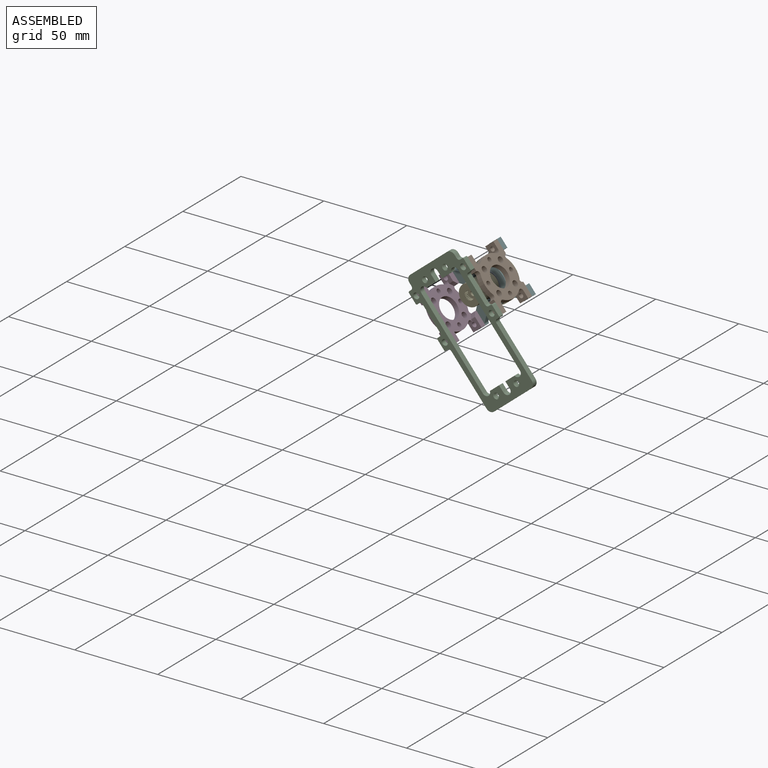
[diagram: assembled view]
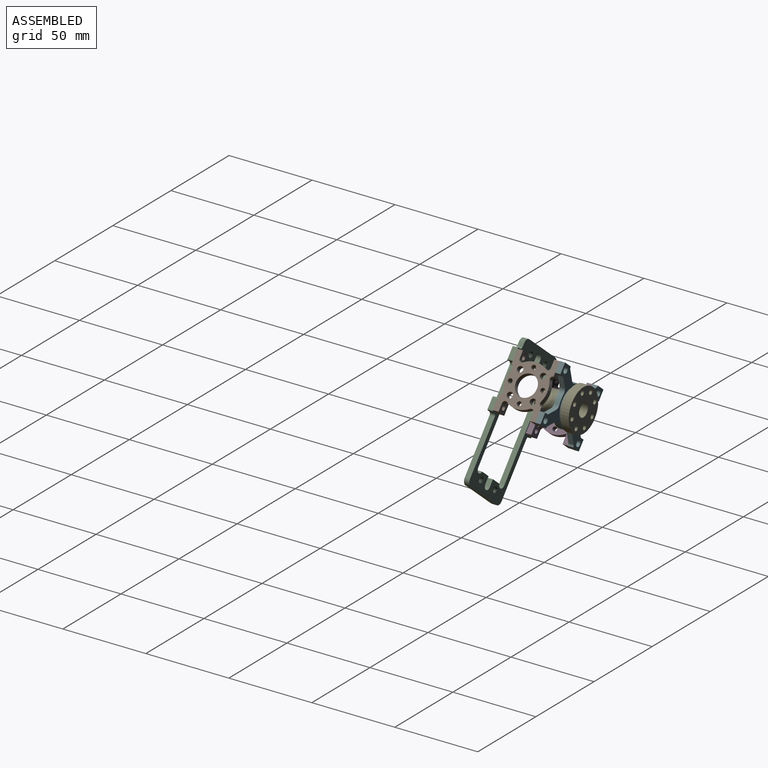
[diagram: assembled view, second angle]
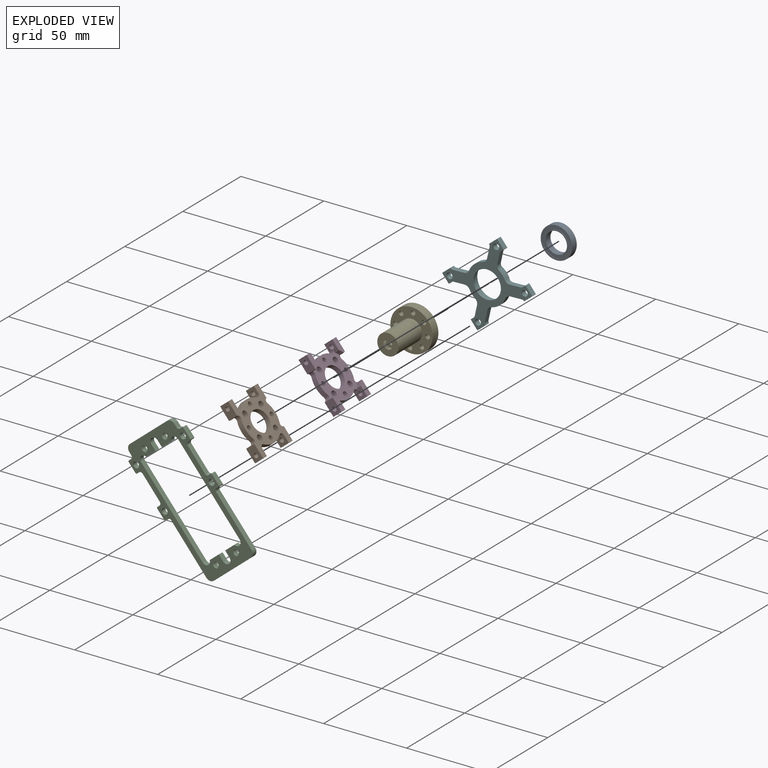
[diagram: exploded view]
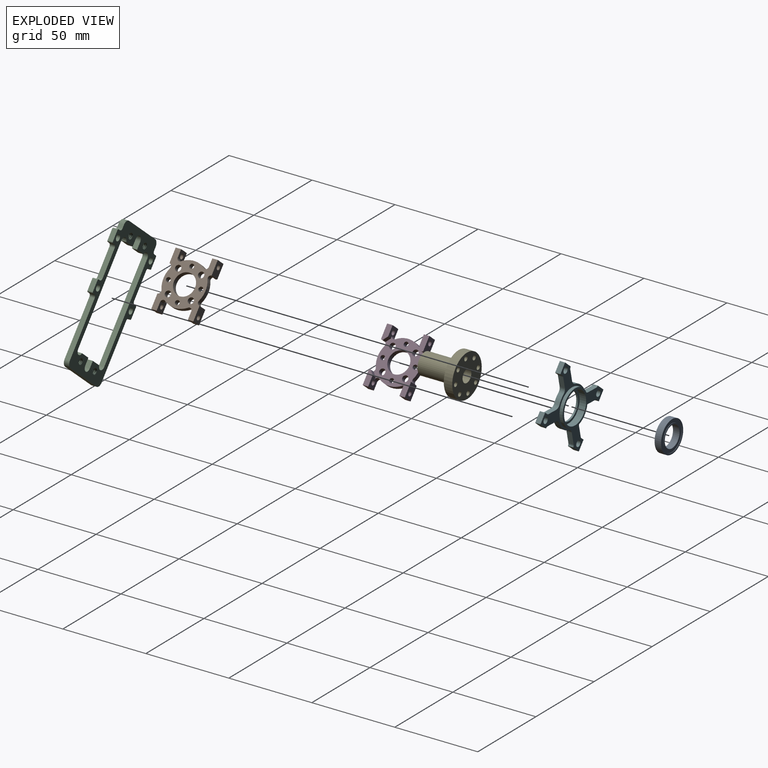
[diagram: exploded view, second angle]
ASSEMBLY  parts=6 mates=5
PART A: 12 faces, bbox 19.1x3.9x19.1 mm
  f0: cylinder r=7.11mm len=14.22mm, axis (0,-1,0), area 11.4mm2, adj f6,f11
  f1: cylinder r=8.55mm len=17.09mm, axis (0,-1,0), area 13.6mm2, adj f9,f11
  f2: cylinder r=7.11mm len=14.22mm, axis (0,1,0), area 11.4mm2, adj f7,f10
  f3: cylinder r=8.55mm len=17.09mm, axis (0,1,0), area 13.6mm2, adj f8,f10
  f4: cylinder r=6.35mm len=12.7mm, axis (0,-1,0), area 156.1mm2, adj f6,f7
  f5: cylinder r=9.53mm len=19.05mm, axis (0,-1,0), area 234.1mm2, adj f8,f9
  f6: plane 14.22x14.22mm, normal (0,-1,0), area 32.2mm2, adj f0,f4
  f7: plane 14.22x14.22mm, normal (0,1,0), area 32.2mm2, adj f2,f4
  f8: plane 19.05x19.05mm, normal (0,1,0), area 55.5mm2, adj f3,f5
  f9: plane 19.05x19.05mm, normal (0,-1,0), area 55.5mm2, adj f1,f5
  f10: plane 17.09x17.09mm, normal (0,1,0), area 70.6mm2, adj f2,f3
  f11: plane 17.09x17.09mm, normal (0,-1,0), area 70.6mm2, adj f0,f1
PART B: 55 faces, bbox 25.4x6.4x33 mm
  f0: cylinder r=1.35mm len=3.29mm, axis (-1,0,0), area 28mm2, adj f29,f31
  f1: cylinder r=1.35mm len=3.29mm, axis (-1,0,0), area 28mm2, adj f25,f27
  f2: cylinder r=1.35mm len=3.29mm, axis (1,0,0), area 28mm2, adj f34,f36
  f3: cylinder r=1.35mm len=3.29mm, axis (1,0,0), area 28mm2, adj f37,f39
  f4: cylinder r=0.64mm len=3.18mm, axis (0,-1,0), area 2.7mm2, adj f20,f32,f43,f44
  f5: cylinder r=0.64mm len=3.18mm, axis (0,-1,0), area 2.7mm2, adj f20,f33,f45,f46
  f6: cylinder r=1.59mm len=3.18mm, axis (0,1,0), area 10.8mm2, adj f19,f20,f24,f37
  f7: cylinder r=1.59mm len=3.18mm, axis (0,1,0), area 10.8mm2, adj f20,f22,f24,f36
  f8: cylinder r=1.59mm len=3.18mm, axis (0,1,0), area 10.8mm2, adj f20,f22,f24,f29
  f9: cylinder r=1.59mm len=3.18mm, axis (0,1,0), area 10.8mm2, adj f19,f20,f24,f25
  f10: cylinder r=1.78mm len=3.56mm, axis (0,1,0), area 35.5mm2, adj f20,f24
  f11: cylinder r=1.78mm len=3.56mm, axis (0,1,0), area 35.5mm2, adj f20,f24
  f12: cylinder r=1.78mm len=3.56mm, axis (0,1,0), area 35.5mm2, adj f20,f24
  f13: cylinder r=1.78mm len=3.56mm, axis (0,1,0), area 35.5mm2, adj f20,f24
  f14: cylinder r=1.35mm len=3.18mm, axis (0,1,0), area 27mm2, adj f20,f24
  f15: cylinder r=1.35mm len=3.18mm, axis (0,1,0), area 27mm2, adj f20,f24
  f16: cylinder r=1.35mm len=3.18mm, axis (0,1,0), area 27mm2, adj f20,f24
  f17: cylinder r=1.35mm len=3.18mm, axis (0,1,0), area 27mm2, adj f20,f24
  f18: cylinder r=6.36mm len=12.73mm, axis (0,1,0), area 126.9mm2, adj f20,f24
  f19: cylinder r=12.7mm len=13.9mm, axis (0,-1,0), area 46.7mm2, adj f6,f9,f20,f24
  f20: plane 25.4x25.4mm, normal (0,1,0), area 341.8mm2, adj f4,f5,f6,f7,f8,f9,f10,f11
  f21: cylinder r=12.7mm len=11.64mm, axis (0,-1,0), area 38.4mm2, adj f20,f24,f33,f40
  f22: cylinder r=12.7mm len=13.9mm, axis (0,-1,0), area 46.7mm2, adj f7,f8,f20,f24
  f23: cylinder r=12.7mm len=11.64mm, axis (0,-1,0), area 38.4mm2, adj f20,f24,f28,f32
  f24: plane 33.02x25.4mm, normal (0,-1,0), area 443.4mm2, adj f6,f7,f8,f9,f10,f11,f12,f13
  f25: plane 6.35x5.9mm, normal (1,0,0), area 27.5mm2, adj f1,f9,f20,f24,f26,f42,f51
  f26: plane 6.35x3.29mm, normal (0,0,-1), area 20.9mm2, adj f24,f25,f27,f42
  f27: plane 8.38x6.35mm, normal (-1,0,0), area 47.4mm2, adj f1,f24,f26,f28,f42
  f28: cylinder r=1.59mm len=6.35mm, axis (0,1,0), area 12.4mm2, adj f20,f23,f24,f27,f42,f52
  f29: plane 6.35x5.9mm, normal (1,0,0), area 27.5mm2, adj f0,f8,f20,f24,f30,f44,f50
  f30: plane 6.35x3.29mm, normal (0,0,1), area 20.9mm2, adj f24,f29,f31,f44
  f31: plane 8.38x6.35mm, normal (-1,0,0), area 47.4mm2, adj f0,f24,f30,f32,f44
  f32: cylinder r=1.59mm len=6.35mm, axis (0,1,0), area 12.4mm2, adj f4,f20,f23,f24,f31,f44
  f33: cylinder r=1.59mm len=6.35mm, axis (0,1,0), area 12.4mm2, adj f5,f20,f21,f24,f34,f46
  f34: plane 8.38x6.35mm, normal (1,0,0), area 47.4mm2, adj f2,f24,f33,f35,f46
  f35: plane 6.35x3.29mm, normal (0,0,1), area 20.9mm2, adj f24,f34,f36,f46
  f36: plane 6.35x5.9mm, normal (-1,0,0), area 27.5mm2, adj f2,f7,f20,f24,f35,f46,f49
  f37: plane 6.35x5.9mm, normal (-1,0,0), area 27.5mm2, adj f3,f6,f20,f24,f38,f48,f53
  f38: plane 6.35x3.29mm, normal (0,0,-1), area 20.9mm2, adj f24,f37,f39,f48
  f39: plane 8.38x6.35mm, normal (1,0,0), area 47.4mm2, adj f3,f24,f38,f40,f48
  f40: cylinder r=1.59mm len=6.35mm, axis (0,1,0), area 12.4mm2, adj f20,f21,f24,f39,f48,f54
  f41: cylinder r=13.97mm len=3.18mm, axis (0,-1,0), area 8.2mm2, adj f20,f42,f51,f52
  f42: plane 8.56x3.29mm, normal (0,1,0), area 25.4mm2, adj f25,f26,f27,f28,f41,f51,f52
  f43: cylinder r=13.97mm len=3.18mm, axis (0,-1,0), area 8.2mm2, adj f4,f20,f44,f50
  f44: plane 8.56x3.29mm, normal (0,1,0), area 25.4mm2, adj f4,f29,f30,f31,f32,f43,f50
  f45: cylinder r=13.97mm len=3.18mm, axis (0,-1,0), area 8.2mm2, adj f5,f20,f46,f49
  f46: plane 8.56x3.29mm, normal (0,1,0), area 25.4mm2, adj f5,f33,f34,f35,f36,f45,f49
  f47: cylinder r=13.97mm len=3.18mm, axis (0,-1,0), area 8.2mm2, adj f20,f48,f53,f54
  f48: plane 8.56x3.29mm, normal (0,1,0), area 25.4mm2, adj f37,f38,f39,f40,f47,f53,f54
  f49: cylinder r=0.64mm len=3.18mm, axis (0,-1,0), area 1.6mm2, adj f20,f36,f45,f46
  f50: cylinder r=0.64mm len=3.18mm, axis (0,-1,0), area 1.6mm2, adj f20,f29,f43,f44
  f51: cylinder r=0.64mm len=3.18mm, axis (0,-1,0), area 1.6mm2, adj f20,f25,f41,f42
  f52: cylinder r=0.64mm len=3.18mm, axis (0,-1,0), area 2.7mm2, adj f20,f28,f41,f42
  f53: cylinder r=0.64mm len=3.18mm, axis (0,-1,0), area 1.6mm2, adj f20,f37,f47,f48
  f54: cylinder r=0.64mm len=3.18mm, axis (0,-1,0), area 2.7mm2, adj f20,f40,f47,f48
PART C: 86 faces, bbox 79.2x3.8x42.9 mm
  f0: cylinder r=1.75mm len=3.51mm, axis (0,-1,0), area 4.4mm2, adj f22,f23,f84,f85
  f1: cylinder r=1.75mm len=3.51mm, axis (0,-1,0), area 4.4mm2, adj f22,f23,f82,f83
  f2: cylinder r=1.75mm len=3.51mm, axis (0,-1,0), area 4.4mm2, adj f22,f23,f80,f81
  f3: cylinder r=1.75mm len=3.51mm, axis (0,-1,0), area 4.4mm2, adj f22,f23,f78,f79
  f4: cylinder r=1.35mm len=2.71mm, axis (0,1,0), area 5.9mm2, adj f12,f13,f78,f79
  f5: cylinder r=1.35mm len=2.71mm, axis (0,1,0), area 5.9mm2, adj f18,f19,f84,f85
  f6: cylinder r=1.35mm len=2.71mm, axis (0,1,0), area 5.9mm2, adj f16,f17,f82,f83
  f7: cylinder r=1.35mm len=2.71mm, axis (0,1,0), area 5.9mm2, adj f14,f15,f80,f81
  f8: cylinder r=1.78mm len=3.56mm, axis (0,1,0), area 35.5mm2, adj f22,f23
  f9: cylinder r=1.78mm len=3.56mm, axis (0,1,0), area 35.5mm2, adj f22,f23
  f10: cylinder r=1.78mm len=3.56mm, axis (0,1,0), area 35.5mm2, adj f22,f23
  f11: cylinder r=1.78mm len=3.56mm, axis (0,1,0), area 35.5mm2, adj f22,f23
  f12: cone r=1.75mm half-angle=45deg, axis (0,-1,0), area 3.3mm2, adj f4,f23,f78,f79
  f13: cone r=1.35mm half-angle=45deg, axis (0,1,0), area 3.3mm2, adj f4,f22,f78,f79
  f14: cone r=1.75mm half-angle=45deg, axis (0,-1,0), area 3.3mm2, adj f7,f23,f80,f81
  f15: cone r=1.35mm half-angle=45deg, axis (0,1,0), area 3.3mm2, adj f7,f22,f80,f81
  f16: cone r=1.75mm half-angle=45deg, axis (0,-1,0), area 3.3mm2, adj f6,f23,f82,f83
  f17: cone r=1.35mm half-angle=45deg, axis (0,1,0), area 3.3mm2, adj f6,f22,f82,f83
  f18: cone r=1.75mm half-angle=45deg, axis (0,-1,0), area 3.3mm2, adj f5,f23,f84,f85
  f19: cone r=1.35mm half-angle=45deg, axis (0,1,0), area 3.3mm2, adj f5,f22,f84,f85
  f20: plane 58.16x3.18mm, normal (0,0,-1), area 184.7mm2, adj f22,f23,f75,f76
  f21: plane 58.16x3.18mm, normal (0,0,1), area 184.7mm2, adj f22,f23,f74,f77
  f22: plane 79.25x42.93mm, normal (0,1,0), area 1018.6mm2, adj f0,f1,f2,f3,f8,f9,f10,f11
  f23: plane 79.25x42.93mm, normal (0,-1,0), area 1018.6mm2, adj f0,f1,f2,f3,f8,f9,f10,f11
  f24: plane 7.17x3.18mm, normal (-1,0,0), area 22.8mm2, adj f22,f23,f41,f77
  f25: plane 7.17x3.18mm, normal (1,0,0), area 22.8mm2, adj f22,f23,f38,f75
  f26: plane 3.18x1.88mm, normal (0,0,1), area 6mm2, adj f22,f23,f43,f58
  f27: plane 16.15x3.18mm, normal (0,0,1), area 51.3mm2, adj f22,f23,f59,f60
  f28: plane 33.25x3.18mm, normal (0,0,1), area 105.6mm2, adj f22,f23,f42,f61
  f29: plane 16.15x3.18mm, normal (0,0,-1), area 51.3mm2, adj f22,f23,f63,f64
  f30: plane 33.25x3.18mm, normal (0,0,-1), area 105.6mm2, adj f22,f23,f44,f62
  f31: plane 7.17x3.18mm, normal (-1,0,0), area 22.8mm2, adj f22,f23,f40,f76
  f32: plane 7.17x3.18mm, normal (1,0,0), area 22.8mm2, adj f22,f23,f37,f74
  f33: plane 28.92x3.18mm, normal (1,0,0), area 91.8mm2, adj f22,f23,f42,f44
  f34: plane 3.18x1.88mm, normal (0,0,-1), area 6mm2, adj f22,f23,f45,f65
  f35: plane 28.92x3.18mm, normal (-1,0,0), area 91.8mm2, adj f22,f23,f43,f45
  f36: cylinder r=2.48mm len=4.95mm, axis (0,1,0), area 24.7mm2, adj f22,f23,f37,f38
  f37: plane 4.13x3.18mm, normal (0,0,1), area 13.1mm2, adj f22,f23,f32,f36
  f38: plane 4.13x3.18mm, normal (0,0,-1), area 13.1mm2, adj f22,f23,f25,f36
  f39: cylinder r=2.48mm len=4.95mm, axis (0,1,0), area 24.7mm2, adj f22,f23,f40,f41
  f40: plane 4.13x3.18mm, normal (0,0,-1), area 13.1mm2, adj f22,f23,f31,f39
  f41: plane 4.13x3.18mm, normal (0,0,1), area 13.1mm2, adj f22,f23,f24,f39
  f42: cylinder r=3.19mm len=3.19mm, axis (0,-1,0), area 15.9mm2, adj f22,f23,f28,f33
  f43: cylinder r=3.19mm len=3.19mm, axis (0,-1,0), area 15.9mm2, adj f22,f23,f26,f35
  f44: cylinder r=3.19mm len=3.19mm, axis (0,-1,0), area 15.9mm2, adj f22,f23,f30,f33
  f45: cylinder r=3.19mm len=3.19mm, axis (0,-1,0), area 15.9mm2, adj f22,f23,f34,f35
  f46: plane 3.18x1.59mm, normal (1,0,0), area 5mm2, adj f22,f23,f62,f66
  f47: plane 6.35x3.18mm, normal (0,0,-1), area 20.2mm2, adj f22,f23,f66,f67
  f48: plane 3.18x1.59mm, normal (-1,0,0), area 5mm2, adj f22,f23,f63,f67
  f49: plane 3.18x1.59mm, normal (1,0,0), area 5mm2, adj f22,f23,f64,f68
  f50: plane 6.35x3.18mm, normal (0,0,-1), area 20.2mm2, adj f22,f23,f68,f69
  f51: plane 3.18x1.59mm, normal (-1,0,0), area 5mm2, adj f22,f23,f65,f69
  f52: plane 3.18x1.59mm, normal (1,0,0), area 5mm2, adj f22,f23,f61,f72
  f53: plane 6.35x3.18mm, normal (0,0,1), area 20.2mm2, adj f22,f23,f71,f72
  f54: plane 3.18x1.59mm, normal (-1,0,0), area 5mm2, adj f22,f23,f60,f71
  f55: plane 3.18x1.59mm, normal (-1,0,0), area 5mm2, adj f22,f23,f58,f73
  f56: plane 3.18x1.59mm, normal (1,0,0), area 5mm2, adj f22,f23,f59,f70
  f57: plane 6.35x3.18mm, normal (0,0,1), area 20.2mm2, adj f22,f23,f70,f73
  f58: cylinder r=1.59mm len=3.18mm, axis (0,-1,0), area 7.9mm2, adj f22,f23,f26,f55
  f59: cylinder r=1.59mm len=3.18mm, axis (0,-1,0), area 7.9mm2, adj f22,f23,f27,f56
  f60: cylinder r=1.59mm len=3.18mm, axis (0,-1,0), area 7.9mm2, adj f22,f23,f27,f54
  f61: cylinder r=1.59mm len=3.18mm, axis (0,-1,0), area 7.9mm2, adj f22,f23,f28,f52
  f62: cylinder r=1.59mm len=3.18mm, axis (0,1,0), area 7.9mm2, adj f22,f23,f30,f46
  f63: cylinder r=1.59mm len=3.18mm, axis (0,1,0), area 7.9mm2, adj f22,f23,f29,f48
  f64: cylinder r=1.59mm len=3.18mm, axis (0,1,0), area 7.9mm2, adj f22,f23,f29,f49
  f65: cylinder r=1.59mm len=3.18mm, axis (0,1,0), area 7.9mm2, adj f22,f23,f34,f51
  f66: cylinder r=0.64mm len=3.18mm, axis (0,1,0), area 3.2mm2, adj f22,f23,f46,f47
  f67: cylinder r=0.64mm len=3.18mm, axis (0,1,0), area 3.2mm2, adj f22,f23,f47,f48
  f68: cylinder r=0.64mm len=3.18mm, axis (0,1,0), area 3.2mm2, adj f22,f23,f49,f50
  f69: cylinder r=0.64mm len=3.18mm, axis (0,1,0), area 3.2mm2, adj f22,f23,f50,f51
  f70: cylinder r=0.64mm len=3.18mm, axis (0,1,0), area 3.2mm2, adj f22,f23,f56,f57
  f71: cylinder r=0.64mm len=3.18mm, axis (0,1,0), area 3.2mm2, adj f22,f23,f53,f54
  f72: cylinder r=0.64mm len=3.18mm, axis (0,1,0), area 3.2mm2, adj f22,f23,f52,f53
  f73: cylinder r=0.64mm len=3.18mm, axis (0,1,0), area 3.2mm2, adj f22,f23,f55,f57
  f74: cylinder r=2.48mm len=4.83mm, axis (0,1,0), area 22.2mm2, adj f21,f22,f23,f32
  f75: cylinder r=2.48mm len=4.83mm, axis (0,1,0), area 22.2mm2, adj f20,f22,f23,f25
  f76: cylinder r=2.48mm len=4.83mm, axis (0,1,0), area 22.2mm2, adj f20,f22,f23,f31
  f77: cylinder r=2.48mm len=4.83mm, axis (0,1,0), area 22.2mm2, adj f21,f22,f23,f24
  f78: bspline ~4.05x3.56mm, area 15.9mm2, adj f3,f4,f12,f13
  f79: bspline ~4.06x3.56mm, area 16.1mm2, adj f3,f4,f12,f13
  f80: bspline ~4.05x3.56mm, area 15.9mm2, adj f2,f7,f14,f15
  f81: bspline ~4.06x3.56mm, area 16.1mm2, adj f2,f7,f14,f15
  f82: bspline ~4.02x3.71mm, area 15.9mm2, adj f1,f6,f16,f17
  f83: bspline ~4.02x3.71mm, area 15.9mm2, adj f1,f6,f16,f17
  f84: bspline ~4.02x3.71mm, area 15.9mm2, adj f0,f5,f18,f19
  f85: bspline ~4.02x3.71mm, area 15.9mm2, adj f0,f5,f18,f19
PART D: same geometry as B
PART E: 67 faces, bbox 25.4x25.4x25.4 mm
  f0: cylinder r=3.26mm len=6.52mm, axis (0,1,0), area 10.4mm2, adj f17,f66
  f1: cylinder r=1.5mm len=3mm, axis (0,1,0), area 12mm2, adj f16,f17
  f2: cylinder r=3.81mm len=21.08mm, axis (0,-1,0), area 504.7mm2, adj f14,f16
  f3: cylinder r=6.35mm len=20.32mm, axis (0,-1,0), area 810.2mm2, adj f13,f15
  f4: cylinder r=1.35mm len=5.08mm, axis (0,1,0), area 43.2mm2, adj f13,f14
  f5: cylinder r=1.35mm len=5.08mm, axis (0,1,0), area 43.2mm2, adj f13,f14
  f6: cylinder r=1.35mm len=5.08mm, axis (0,1,0), area 43.2mm2, adj f13,f14
  f7: cylinder r=1.35mm len=5.08mm, axis (0,1,0), area 43.2mm2, adj f13,f14
  f8: cylinder r=1.35mm len=5.08mm, axis (0,1,0), area 43.2mm2, adj f13,f14
  f9: cylinder r=1.35mm len=5.08mm, axis (0,1,0), area 43.2mm2, adj f13,f14
  f10: cylinder r=1.35mm len=5.08mm, axis (0,1,0), area 43.2mm2, adj f13,f14
  f11: cylinder r=1.35mm len=5.08mm, axis (0,1,0), area 43.2mm2, adj f13,f14
  f12: cylinder r=12.7mm len=25.39mm, axis (0,-1,0), area 405.2mm2, adj f13,f14
  f13: plane 25.39x25.39mm, normal (0,1,0), area 333.9mm2, adj f3,f4,f5,f6,f7,f8,f9,f10
  f14: plane 25.39x25.39mm, normal (0,-1,0), area 414.8mm2, adj f2,f4,f5,f6,f7,f8,f9,f10
  f15: plane 12.69x12.69mm, normal (0,1,0), area 103.4mm2, adj f3,f18,f19,f20,f21,f22,f23,f24
  f16: plane 7.62x7.62mm, normal (0,-1,0), area 38.5mm2, adj f1,f2
  f17: plane 6.52x6.52mm, normal (0,1,0), area 26.3mm2, adj f0,f1
  f18: plane 2.54x0.41mm, normal (-0.86,0,-0.5), area 1.2mm2, adj f15,f19,f65,f66
  f19: plane 2.54x0.34mm, normal (-0.7,0,0.71), area 1.2mm2, adj f15,f18,f20,f66
  f20: plane 2.54x0.34mm, normal (-0.7,0,-0.71), area 1.2mm2, adj f15,f19,f21,f66
  f21: plane 2.54x0.41mm, normal (-0.86,0,0.5), area 1.2mm2, adj f15,f20,f22,f66
  f22: plane 2.54x0.41mm, normal (-0.5,0,-0.87), area 1.2mm2, adj f15,f21,f23,f66
  f23: plane 2.54x0.46mm, normal (-0.97,0,0.26), area 1.2mm2, adj f15,f22,f24,f66
  f24: plane 2.54x0.46mm, normal (-0.26,0,-0.97), area 1.2mm2, adj f15,f23,f25,f66
  f25: plane 2.54x0.48mm, normal (-1,0,0), area 1.2mm2, adj f15,f24,f26,f66
  f26: plane 2.54x0.48mm, normal (0,0,-1), area 1.2mm2, adj f15,f25,f27,f66
  f27: plane 2.54x0.46mm, normal (-0.97,0,-0.26), area 1.2mm2, adj f15,f26,f28,f66
  f28: plane 2.54x0.46mm, normal (0.26,0,-0.97), area 1.2mm2, adj f15,f27,f29,f66
  f29: plane 2.54x0.41mm, normal (-0.87,0,-0.5), area 1.2mm2, adj f15,f28,f30,f66
  f30: plane 2.54x0.41mm, normal (0.5,0,-0.86), area 1.2mm2, adj f15,f29,f31,f66
  f31: plane 2.54x0.34mm, normal (-0.71,0,-0.7), area 1.2mm2, adj f15,f30,f32,f66
  f32: plane 2.54x0.34mm, normal (0.71,0,-0.7), area 1.2mm2, adj f15,f31,f33,f66
  f33: plane 2.54x0.41mm, normal (-0.5,0,-0.86), area 1.2mm2, adj f15,f32,f34,f66
  f34: plane 2.54x0.41mm, normal (0.87,0,-0.5), area 1.2mm2, adj f15,f33,f35,f66
  f35: plane 2.54x0.46mm, normal (-0.26,0,-0.97), area 1.2mm2, adj f15,f34,f36,f66
  f36: plane 2.54x0.46mm, normal (0.97,0,-0.26), area 1.2mm2, adj f15,f35,f37,f66
  f37: plane 2.54x0.48mm, normal (0,0,-1), area 1.2mm2, adj f15,f36,f38,f66
  f38: plane 2.54x0.48mm, normal (1,0,0), area 1.2mm2, adj f15,f37,f39,f66
  f39: plane 2.54x0.46mm, normal (0.26,0,-0.97), area 1.2mm2, adj f15,f38,f40,f66
  f40: plane 2.54x0.46mm, normal (0.97,0,0.26), area 1.2mm2, adj f15,f39,f41,f66
  f41: plane 2.54x0.41mm, normal (0.5,0,-0.87), area 1.2mm2, adj f15,f40,f42,f66
  f42: plane 2.54x0.41mm, normal (0.86,0,0.5), area 1.2mm2, adj f15,f41,f43,f66
  f43: plane 2.54x0.34mm, normal (0.7,0,-0.71), area 1.2mm2, adj f15,f42,f44,f66
  f44: plane 2.54x0.34mm, normal (0.7,0,0.71), area 1.2mm2, adj f15,f43,f45,f66
  f45: plane 2.54x0.41mm, normal (0.86,0,-0.5), area 1.2mm2, adj f15,f44,f46,f66
  f46: plane 2.54x0.41mm, normal (0.5,0,0.87), area 1.2mm2, adj f15,f45,f47,f66
  f47: plane 2.54x0.46mm, normal (0.97,0,-0.26), area 1.2mm2, adj f15,f46,f48,f66
  f48: plane 2.54x0.46mm, normal (0.26,0,0.97), area 1.2mm2, adj f15,f47,f49,f66
  f49: plane 2.54x0.48mm, normal (1,0,0), area 1.2mm2, adj f15,f48,f50,f66
  f50: plane 2.54x0.48mm, normal (0,0,1), area 1.2mm2, adj f15,f49,f51,f66
  f51: plane 2.54x0.46mm, normal (0.97,0,0.26), area 1.2mm2, adj f15,f50,f52,f66
  f52: plane 2.54x0.46mm, normal (-0.26,0,0.97), area 1.2mm2, adj f15,f51,f53,f66
  f53: plane 2.54x0.41mm, normal (0.87,0,0.5), area 1.2mm2, adj f15,f52,f54,f66
  f54: plane 2.54x0.41mm, normal (-0.5,0,0.86), area 1.2mm2, adj f15,f53,f55,f66
  f55: plane 2.54x0.34mm, normal (0.71,0,0.7), area 1.2mm2, adj f15,f54,f56,f66
  f56: plane 2.54x0.34mm, normal (-0.71,0,0.7), area 1.2mm2, adj f15,f55,f57,f66
  f57: plane 2.54x0.41mm, normal (0.5,0,0.86), area 1.2mm2, adj f15,f56,f58,f66
  f58: plane 2.54x0.41mm, normal (-0.87,0,0.5), area 1.2mm2, adj f15,f57,f59,f66
  f59: plane 2.54x0.46mm, normal (0.26,0,0.97), area 1.2mm2, adj f15,f58,f60,f66
  f60: plane 2.54x0.46mm, normal (-0.97,0,0.26), area 1.2mm2, adj f15,f59,f61,f66
  f61: plane 2.54x0.48mm, normal (0,0,1), area 1.2mm2, adj f15,f60,f62,f66
  f62: plane 2.54x0.48mm, normal (-1,0,0), area 1.2mm2, adj f15,f61,f63,f66
  f63: plane 2.54x0.46mm, normal (-0.26,0,0.97), area 1.2mm2, adj f15,f62,f64,f66
  f64: plane 2.54x0.46mm, normal (-0.97,0,-0.26), area 1.2mm2, adj f15,f63,f65,f66
  f65: plane 2.54x0.41mm, normal (-0.5,0,0.87), area 1.2mm2, adj f15,f18,f64,f66
  f66: plane 6.52x6.52mm, normal (0,-1,0), area 10.3mm2, adj f0,f18,f19,f20,f21,f22,f23,f24
PART F: 63 faces, bbox 42.9x5.1x33.3 mm
  f0: cylinder r=3.17mm len=3.41mm, axis (0,-1,0), area 11.5mm2, adj f10,f11,f33,f34
  f1: cylinder r=3.17mm len=3.41mm, axis (0,-1,0), area 11.5mm2, adj f10,f11,f12,f34
  f2: cylinder r=1.78mm len=3.56mm, axis (0,1,0), area 35.5mm2, adj f10,f34
  f3: cylinder r=1.78mm len=3.56mm, axis (0,1,0), area 35.5mm2, adj f10,f34
  f4: cylinder r=1.78mm len=3.56mm, axis (0,1,0), area 35.5mm2, adj f10,f34
  f5: cylinder r=1.78mm len=3.56mm, axis (0,1,0), area 35.5mm2, adj f10,f34
  f6: cylinder r=8.26mm len=16.51mm, axis (0,1,0), area 58mm2, adj f34,f36
  f7: cylinder r=9.53mm len=19.05mm, axis (0,-1,0), area 237.1mm2, adj f35,f36
  f8: cylinder r=10.73mm len=21.46mm, axis (0,-1,0), area 128.5mm2, adj f10,f35
  f9: cylinder r=11.97mm len=11.02mm, axis (0,-1,0), area 36.4mm2, adj f10,f34,f39,f40
  f10: plane 42.93x33.27mm, normal (0,1,0), area 419.3mm2, adj f0,f1,f2,f3,f4,f5,f8,f9
  f11: cylinder r=11.97mm len=11.02mm, axis (0,-1,0), area 36.4mm2, adj f0,f1,f10,f34
  f12: plane 5.58x4.32mm, normal (-0.61,0,0.79), area 22.4mm2, adj f1,f10,f34,f48
  f13: plane 6.1x3.18mm, normal (0,0,1), area 19.4mm2, adj f10,f34,f57,f59
  f14: plane 6.1x3.18mm, normal (1,0,0), area 19.4mm2, adj f10,f34,f56,f59
  f15: plane 3.18x2.34mm, normal (0,0,-1), area 7.4mm2, adj f10,f34,f43,f56
  f16: plane 5.21x4.04mm, normal (0.61,0,-0.79), area 20.9mm2, adj f10,f34,f42,f43
  f17: cylinder r=11.97mm len=5.38mm, axis (0,-1,0), area 17.2mm2, adj f10,f34,f41,f42
  f18: plane 5.21x4.04mm, normal (0.61,0,0.79), area 20.9mm2, adj f10,f34,f41,f49
  f19: plane 3.18x2.34mm, normal (0,0,1), area 7.4mm2, adj f10,f34,f49,f55
  f20: plane 6.1x3.18mm, normal (1,0,0), area 19.4mm2, adj f10,f34,f55,f62
  f21: plane 6.1x3.18mm, normal (0,0,-1), area 19.4mm2, adj f10,f34,f54,f62
  f22: plane 5.58x4.32mm, normal (-0.61,0,-0.79), area 22.4mm2, adj f10,f34,f40,f45
  f23: plane 5.58x4.32mm, normal (0.61,0,-0.79), area 22.4mm2, adj f10,f34,f39,f44
  f24: plane 6.1x3.18mm, normal (0,0,-1), area 19.4mm2, adj f10,f34,f53,f61
  f25: plane 6.1x3.18mm, normal (-1,0,0), area 19.4mm2, adj f10,f34,f52,f61
  f26: plane 3.18x2.34mm, normal (0,0,1), area 7.4mm2, adj f10,f34,f47,f52
  f27: plane 5.21x4.04mm, normal (-0.61,0,0.79), area 20.9mm2, adj f10,f34,f38,f47
  f28: cylinder r=11.97mm len=5.38mm, axis (0,-1,0), area 17.2mm2, adj f10,f34,f37,f38
  f29: plane 5.21x4.04mm, normal (-0.61,0,-0.79), area 20.9mm2, adj f10,f34,f37,f46
  f30: plane 3.18x2.34mm, normal (0,0,-1), area 7.4mm2, adj f10,f34,f46,f51
  f31: plane 6.1x3.18mm, normal (-1,0,0), area 19.4mm2, adj f10,f34,f51,f60
  f32: plane 6.1x3.18mm, normal (0,0,1), area 19.4mm2, adj f10,f34,f58,f60
  f33: plane 5.58x4.32mm, normal (0.61,0,0.79), area 22.4mm2, adj f0,f10,f34,f50
  f34: plane 42.93x33.27mm, normal (0,-1,0), area 567mm2, adj f0,f1,f2,f3,f4,f5,f6,f9
  f35: plane 21.46x21.46mm, normal (0,1,0), area 76.8mm2, adj f7,f8
  f36: plane 19.05x19.05mm, normal (0,1,0), area 70.9mm2, adj f6,f7
  f37: cylinder r=3.17mm len=3.22mm, axis (0,-1,0), area 11.5mm2, adj f10,f28,f29,f34
  f38: cylinder r=3.17mm len=3.22mm, axis (0,-1,0), area 11.5mm2, adj f10,f27,f28,f34
  f39: cylinder r=3.17mm len=3.41mm, axis (0,-1,0), area 11.5mm2, adj f9,f10,f23,f34
  f40: cylinder r=3.17mm len=3.41mm, axis (0,-1,0), area 11.5mm2, adj f9,f10,f22,f34
  f41: cylinder r=3.17mm len=3.22mm, axis (0,-1,0), area 11.5mm2, adj f10,f17,f18,f34
  f42: cylinder r=3.17mm len=3.22mm, axis (0,-1,0), area 11.5mm2, adj f10,f16,f17,f34
  f43: cylinder r=1.59mm len=3.18mm, axis (0,1,0), area 3.3mm2, adj f10,f15,f16,f34
  f44: cylinder r=1.59mm len=3.18mm, axis (0,1,0), area 4.6mm2, adj f10,f23,f34,f53
  f45: cylinder r=1.59mm len=3.18mm, axis (0,1,0), area 4.6mm2, adj f10,f22,f34,f54
  f46: cylinder r=1.59mm len=3.18mm, axis (0,1,0), area 3.3mm2, adj f10,f29,f30,f34
  f47: cylinder r=1.59mm len=3.18mm, axis (0,1,0), area 3.3mm2, adj f10,f26,f27,f34
  f48: cylinder r=1.59mm len=3.18mm, axis (0,1,0), area 4.6mm2, adj f10,f12,f34,f57
  f49: cylinder r=1.59mm len=3.18mm, axis (0,1,0), area 3.3mm2, adj f10,f18,f19,f34
  f50: cylinder r=1.59mm len=3.18mm, axis (0,1,0), area 4.6mm2, adj f10,f33,f34,f58
  f51: cylinder r=0.13mm len=3.18mm, axis (0,-1,0), area 0.6mm2, adj f10,f30,f31,f34
  f52: cylinder r=0.13mm len=3.18mm, axis (0,1,0), area 0.6mm2, adj f10,f25,f26,f34
  f53: cylinder r=0.13mm len=3.18mm, axis (0,1,0), area 0.6mm2, adj f10,f24,f34,f44
  f54: cylinder r=0.13mm len=3.18mm, axis (0,1,0), area 0.6mm2, adj f10,f21,f34,f45
  f55: cylinder r=0.13mm len=3.18mm, axis (0,1,0), area 0.6mm2, adj f10,f19,f20,f34
  f56: cylinder r=0.13mm len=3.18mm, axis (0,-1,0), area 0.6mm2, adj f10,f14,f15,f34
  f57: cylinder r=0.13mm len=3.18mm, axis (0,1,0), area 0.6mm2, adj f10,f13,f34,f48
  f58: cylinder r=0.13mm len=3.18mm, axis (0,1,0), area 0.6mm2, adj f10,f32,f34,f50
  f59: cylinder r=0.13mm len=3.18mm, axis (0,-1,0), area 0.6mm2, adj f10,f13,f14,f34
  f60: cylinder r=0.13mm len=3.18mm, axis (0,1,0), area 0.6mm2, adj f10,f31,f32,f34
  f61: cylinder r=0.13mm len=3.18mm, axis (0,-1,0), area 0.6mm2, adj f10,f24,f25,f34
  f62: cylinder r=0.13mm len=3.18mm, axis (0,1,0), area 0.6mm2, adj f10,f20,f21,f34
PLACE A rot(axis=(0,-1,0),39.6deg) t=(38.92,21.9,21.62)mm
PLACE B rot(axis=(-0.32,-0.32,0.89),96.6deg) t=(55.45,8.09,35.31)mm
PLACE C rot(axis=(0,1,0),50.4deg) t=(48.92,-7.79,9.54)mm
PLACE D rot(axis=(0.32,-0.32,-0.89),96.6deg) t=(22.39,8.09,7.93)mm
PLACE E rot(axis=(0.34,0,-0.94),180deg) t=(38.92,30.9,21.62)mm
PLACE F rot(axis=(0,-1,0),39.6deg) t=(38.92,20.79,21.62)mm
MATE fastened F.f6 <-> A.f0  axis (0,1,0) through (38.92,21.9,21.62)mm
MATE fastened B.f1 <-> F.f3  axis (0,1,0) through (61.59,20.79,22.91)mm
MATE fastened D.f0 <-> F.f5  axis (0,1,0) through (16.24,20.79,20.33)mm
MATE fastened C.f10 <-> D.f0  axis (0,1,0) through (16.24,-4.61,20.33)mm
MATE revolute E.f0 <-> A.f0  axis (0,-1,0) through (38.92,25.82,21.62)mm
